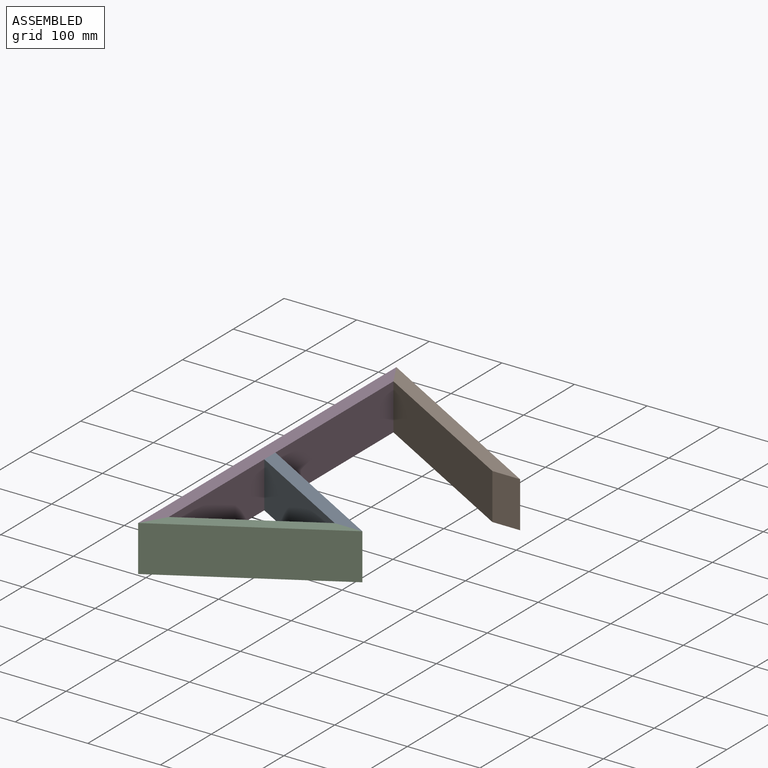
[diagram: assembled view]
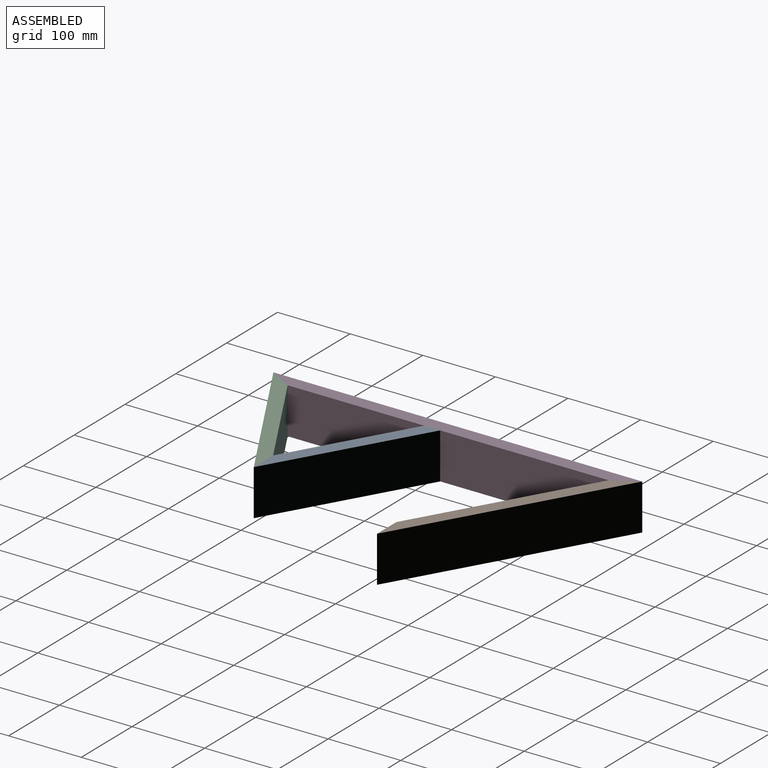
[diagram: assembled view, second angle]
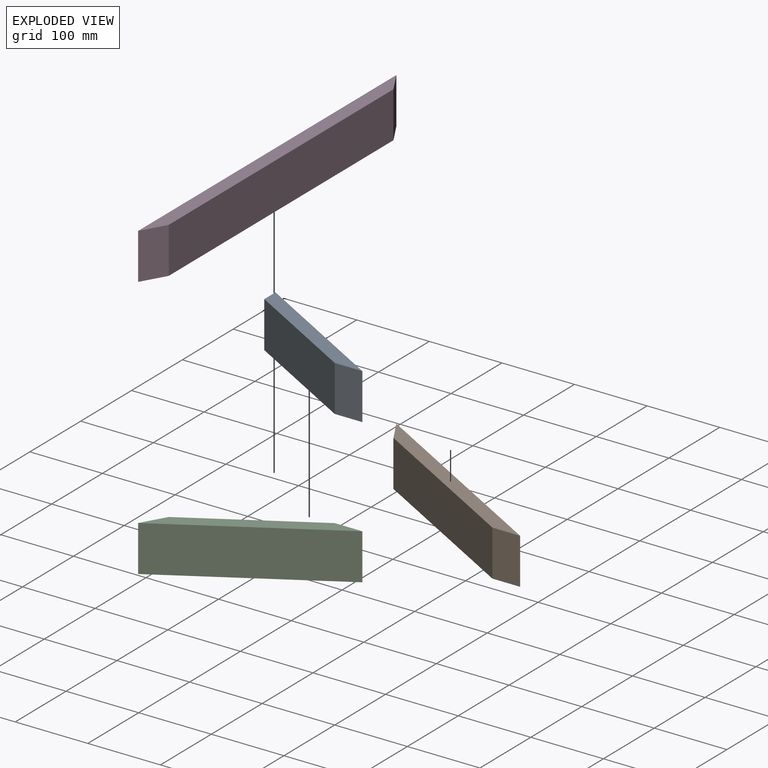
[diagram: exploded view]
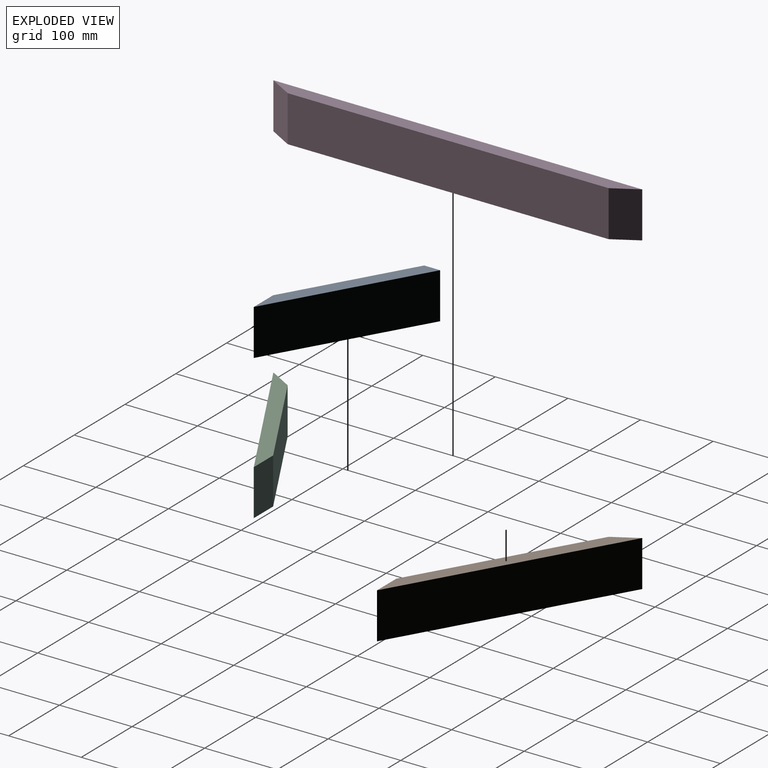
[diagram: exploded view, second angle]
ASSEMBLY  parts=4 mates=9
PART A: 6 faces, bbox 232x19.1x63.5 mm
  f0: plane 232x19.05mm, normal (0,0,-1), area 4000.6mm2, adj f1,f3,f4,f5
  f1: plane 232x63.5mm, normal (0,-1,0), area 14732.2mm2, adj f0,f2,f4,f5
  f2: plane 232x19.05mm, normal (0,0,1), area 4000.6mm2, adj f1,f3,f4,f5
  f3: plane 188.01x63.5mm, normal (0,1,0), area 11938.6mm2, adj f0,f2,f4,f5
  f4: plane 63.5x33mm, normal (0.5,0.87,0), area 2419.4mm2, adj f0,f1,f2,f3
  f5: plane 63.5x19.05mm, normal (-0.87,0.5,0), area 1396.8mm2, adj f0,f1,f2,f3
PART B: 6 faces, bbox 330.2x19.1x63.5 mm
  f0: plane 330.2x19.05mm, normal (0,0,1), area 5661.7mm2, adj f1,f3,f4,f5
  f1: plane 264.21x63.5mm, normal (0,1,0), area 16777.3mm2, adj f0,f2,f4,f5
  f2: plane 330.2x19.05mm, normal (0,0,-1), area 5661.7mm2, adj f1,f3,f4,f5
  f3: plane 330.2x63.5mm, normal (0,-1,0), area 20967.7mm2, adj f0,f2,f4,f5
  f4: plane 63.5x33mm, normal (-0.5,0.87,0), area 2419.4mm2, adj f0,f1,f2,f3
  f5: plane 63.5x33mm, normal (0.5,0.87,0), area 2419.4mm2, adj f0,f1,f2,f3
PART C: 6 faces, bbox 254x19.1x63.5 mm
  f0: plane 254x19.05mm, normal (0,0,1), area 4210.1mm2, adj f1,f3,f4,f5
  f1: plane 188.01x63.5mm, normal (0,1,0), area 11938.6mm2, adj f0,f2,f4,f5
  f2: plane 254x19.05mm, normal (0,0,-1), area 4210.1mm2, adj f1,f3,f4,f5
  f3: plane 254x63.5mm, normal (0,-1,0), area 16129mm2, adj f0,f2,f4,f5
  f4: plane 63.5x33mm, normal (-0.5,0.87,0), area 2419.4mm2, adj f0,f1,f2,f3
  f5: plane 63.5x33mm, normal (0.5,0.87,0), area 2419.4mm2, adj f0,f1,f2,f3
PART D: 6 faces, bbox 508x19.1x63.5 mm
  f0: plane 508x19.05mm, normal (0,0,1), area 9048.8mm2, adj f1,f3,f4,f5
  f1: plane 442.01x63.5mm, normal (0,1,0), area 28067.6mm2, adj f0,f2,f4,f5
  f2: plane 508x19.05mm, normal (0,0,-1), area 9048.8mm2, adj f1,f3,f4,f5
  f3: plane 508x63.5mm, normal (0,-1,0), area 32258mm2, adj f0,f2,f4,f5
  f4: plane 63.5x33mm, normal (-0.5,0.87,0), area 2419.4mm2, adj f0,f1,f2,f3
  f5: plane 63.5x33mm, normal (0.5,0.87,0), area 2419.4mm2, adj f0,f1,f2,f3
PLACE A rot(axis=(0.97,-0.26,0),180deg) t=(-14.96,137.75,-37.15)mm
PLACE B rot(axis=(0.97,-0.26,0),180deg) t=(18.03,372.7,-37.15)mm
PLACE C rot(axis=(0,0,1),30deg) t=(-14.96,43.74,-37.15)mm
PLACE D rot(axis=(-0.71,-0.71,0),180deg) t=(-96.37,217.74,-37.15)mm fixed
MATE ball D.f2 <-> C.f0  axis (0,0,1) through (-96.37,-3.26,-5.4)mm
MATE planar B.f4 <-> D.f5  axis (-0.87,-0.5,0) through (-105.9,455.25,-37.15)mm
MATE planar B.f2 <-> D.f2  axis (0,0,1) through (-96.37,438.75,-5.4)mm
MATE ball C.f0 <-> A.f0  axis (0,0,1) through (66.45,90.74,-5.4)mm
MATE planar D.f2 <-> C.f0  axis (0,0,1) through (-106.12,217.74,-5.4)mm
MATE planar A.f4 <-> C.f5  axis (0,-1,0) through (85.5,90.74,-37.15)mm
MATE planar D.f4 <-> C.f4  axis (0.87,-0.5,0) through (-105.9,-19.76,-68.9)mm
MATE ball B.f2 <-> D.f2  axis (0,0,1) through (-96.37,438.75,-5.4)mm
MATE planar A.f0 <-> C.f0  axis (0,0,1) through (-5.11,143.44,-5.4)mm
